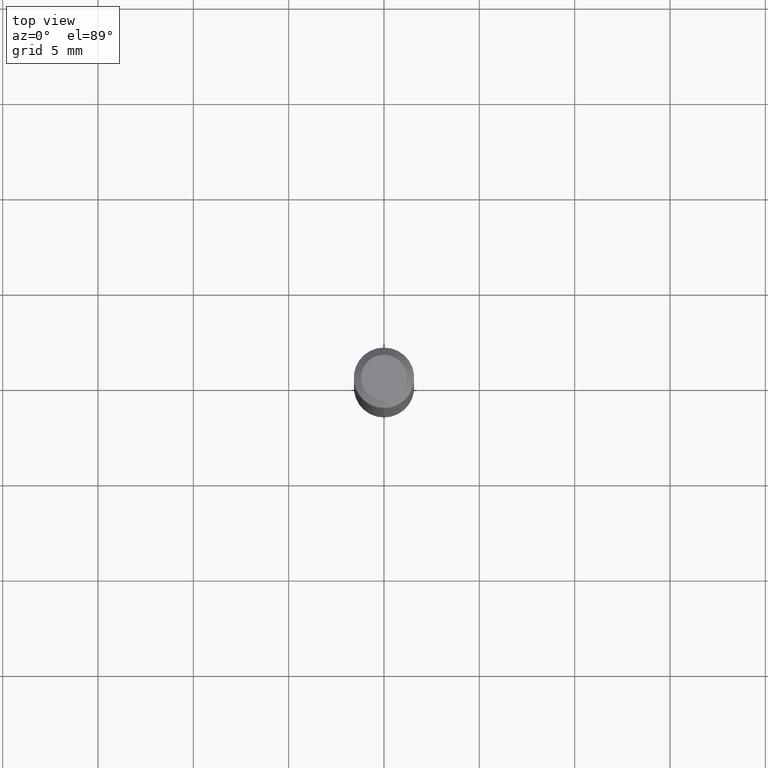
[diagram: clean part render]
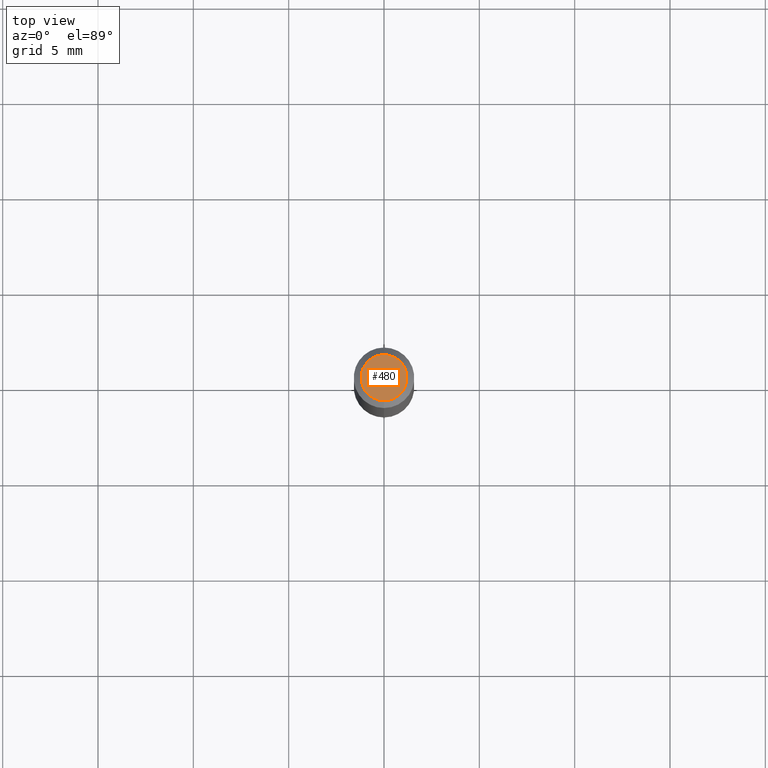
[diagram: same view with one face highlighted and labeled with its STEP entity id]
A machine part, top view. The second image highlights one B-rep face of the part: STEP entity #480.
In plain terms, the highlighted planar face has unit normal (0, -0, -1).
Its self-contained STEP definition (entity closure, byte-faithful):
#2 = DIRECTION ( 'NONE',  ( -6.982962677686266711E-15, -1.000000000000000000, 3.491355397833422354E-15 ) ) ;
#82 = VERTEX_POINT ( 'NONE', #113 ) ;
#84 = CIRCLE ( 'NONE', #204, 0.04749999999999999362 ) ;
#89 = ORIENTED_EDGE ( 'NONE', *, *, #231, .T. ) ;
#113 = CARTESIAN_POINT ( 'NONE',  ( 3.840629472727447874E-16, 0.04749999999999999362, -4.939923113072090255E-16 ) ) ;
#141 = DIRECTION ( 'NONE',  ( 6.982962677686265922E-15, 1.000000000000000000, -3.491355397833421565E-15 ) ) ;
#166 = DIRECTION ( 'NONE',  ( -2.445556750322185455E-29, 3.491355397833421960E-15, 1.000000000000000000 ) ) ;
#195 = AXIS2_PLACEMENT_3D ( 'NONE', #335, #500, #141 ) ;
#198 = CARTESIAN_POINT ( 'NONE',  ( 8.025166128797006696E-45, -1.145698503156555338E-30, -3.281529299101215100E-16 ) ) ;
#204 = AXIS2_PLACEMENT_3D ( 'NONE', #198, #403, #2 ) ;
#231 = EDGE_CURVE ( 'NONE', #282, #82, #84, .T. ) ;
#282 = VERTEX_POINT ( 'NONE', #489 ) ;
#311 = CIRCLE ( 'NONE', #377, 0.04749999999999999362 ) ;
#335 = CARTESIAN_POINT ( 'NONE',  ( 3.316907271900976096E-16, 0.04749999999999999362, -3.299158463521483691E-16 ) ) ;
#341 = PLANE ( 'NONE',  #195 ) ;
#345 = EDGE_CURVE ( 'NONE', #82, #282, #311, .T. ) ;
#348 = ORIENTED_EDGE ( 'NONE', *, *, #345, .T. ) ;
#362 = CARTESIAN_POINT ( 'NONE',  ( 8.025166128797006696E-45, -1.145698503156555338E-30, -3.281529299101215100E-16 ) ) ;
#377 = AXIS2_PLACEMENT_3D ( 'NONE', #362, #166, #410 ) ;
#403 = DIRECTION ( 'NONE',  ( -2.445556750322185455E-29, 3.491355397833421960E-15, 1.000000000000000000 ) ) ;
#410 = DIRECTION ( 'NONE',  ( -6.982962677686266711E-15, -1.000000000000000000, 3.491355397833422354E-15 ) ) ;
#461 = EDGE_LOOP ( 'NONE', ( #348, #89 ) ) ;
#480 = ADVANCED_FACE ( 'NONE', ( #511 ), #341, .F. ) ;
#489 = CARTESIAN_POINT ( 'NONE',  ( -3.773273898774340269E-16, -0.04749999999999999362, -1.623135485130339945E-16 ) ) ;
#500 = DIRECTION ( 'NONE',  ( 2.445556750322185455E-29, -3.491355397833421565E-15, -1.000000000000000000 ) ) ;
#511 = FACE_OUTER_BOUND ( 'NONE', #461, .T. ) ;